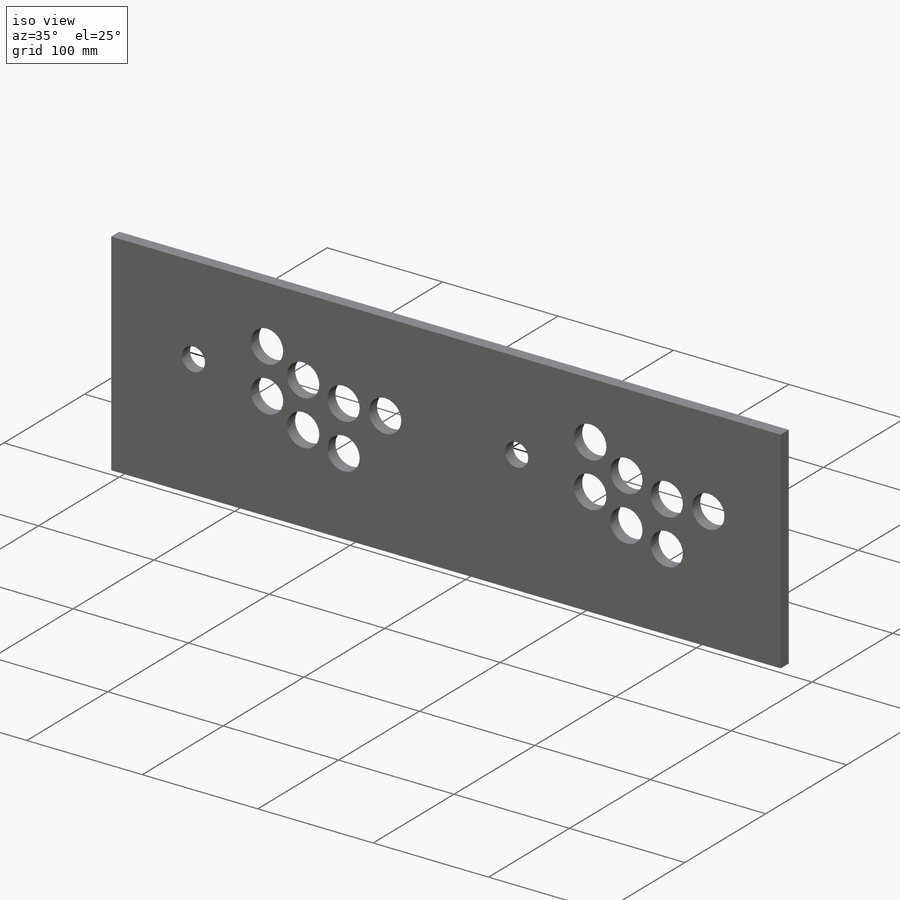
[diagram: iso view]
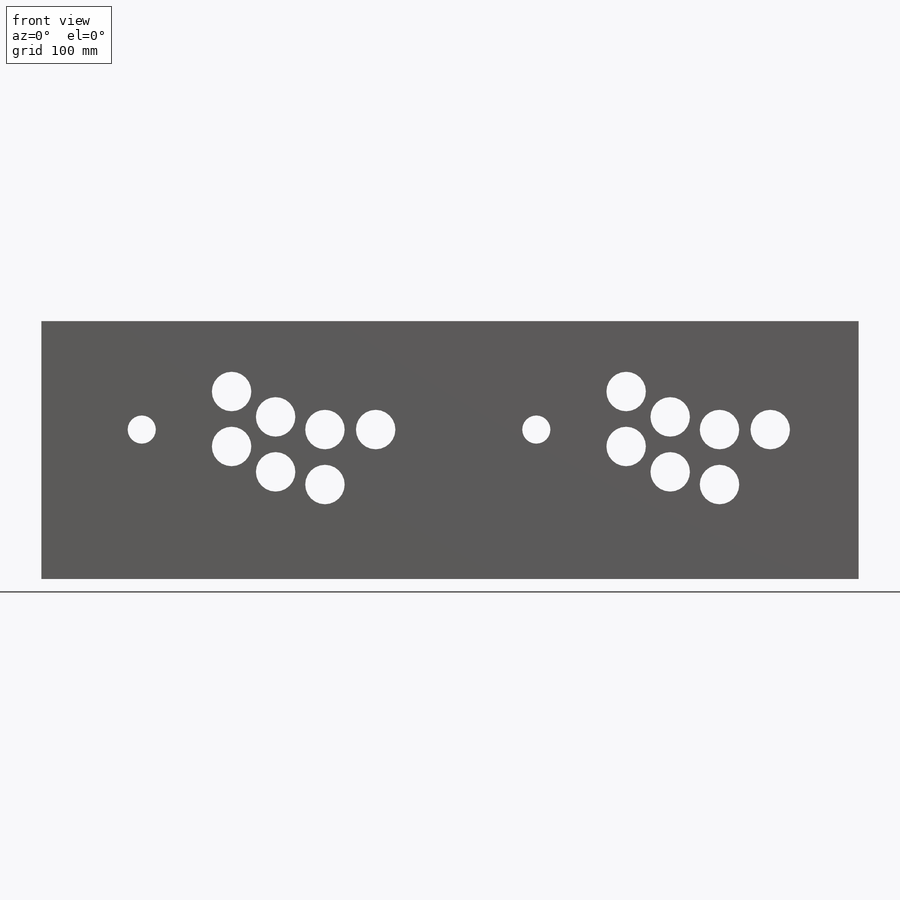
[diagram: front view]
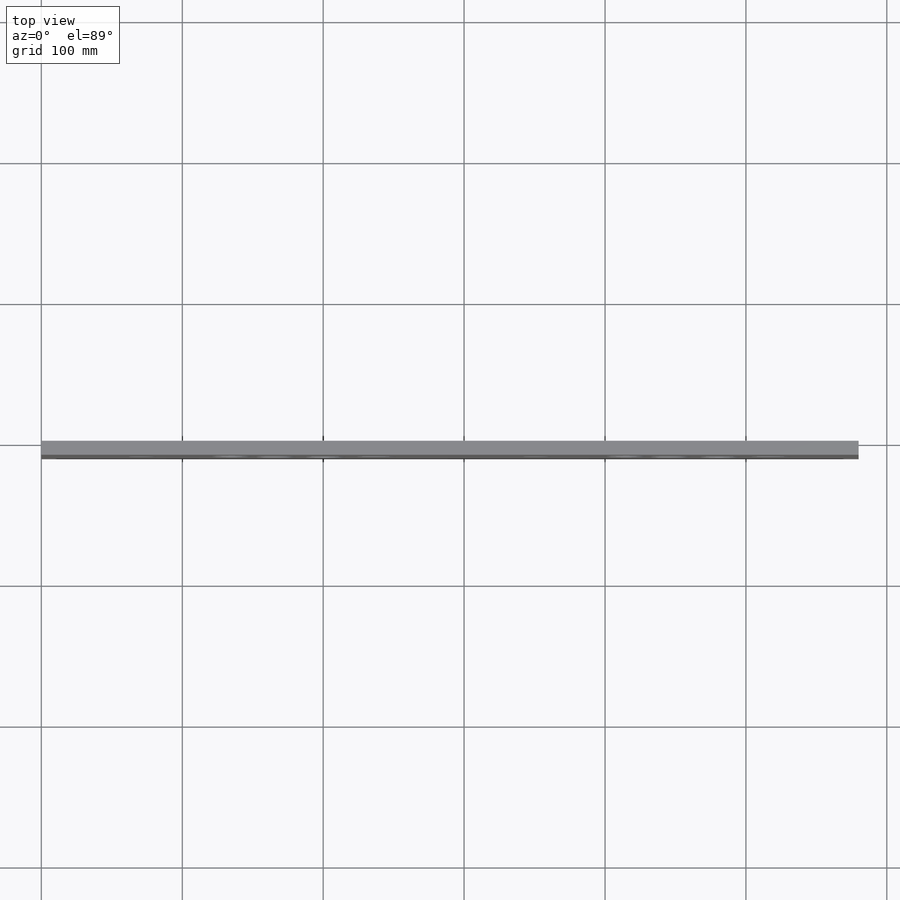
[diagram: top view]
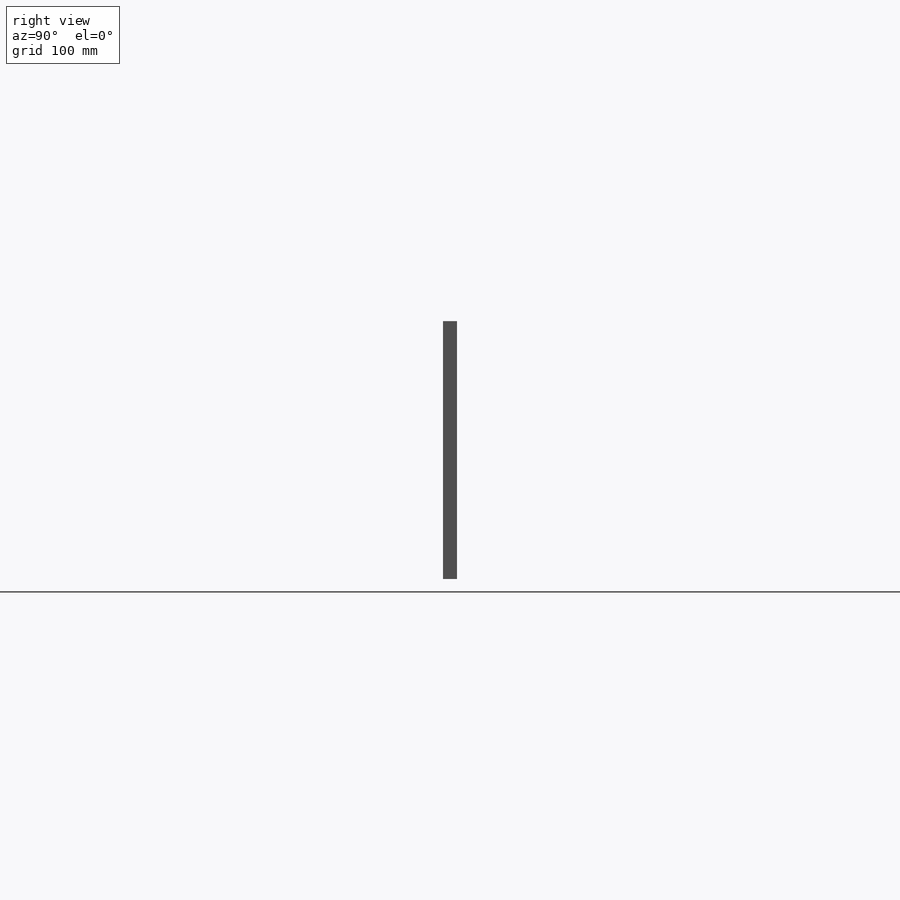
[diagram: right view]
SOLIDWORKS PART (.sldprt)
format: sldprt  version: not decoded by parser v0  size: 205,312 bytes
history: native  units: mm
features: plane x3, sketch x2, material x1, extrude x1, cut_extrude x1, pattern_linear x1, fillet x1 (+8 scaffold rows collapsed)
feature tree (18):
  scaffold x8  (default folders/planes/origin — collapsed)
  material  "Matériau <non spécifié>"
  plane  "Plan de face"
  plane  "Plan de dessus"
  plane  "Plan de droite"
  sketch  "Esquisse1"  dims[D1=183.0mm D2=580.0mm]
  extrude  "Boss.-Extru.1"  Depth=10mm
  sketch  "Esquisse3"  dims[c1.D12=28.0mm c1.D13=20.0mm c1.D2=28.0mm c1.D1=197.25mm c2.D2=66.0mm c2.D3=9.0mm c2.D4=18.0mm c2.D5=12.0mm c2.D6=9.0mm c2.D7=36.0mm c2.D8=35.0mm c2.D9=31.25mm c2.D10=59.0mm c2.D11=36.0mm c2.D14=50.0mm c2.D15=50.0mm c3.D2=81.25mm]
  cut_extrude  "Enlèv. mat.-Extru.1"  Depth=10mm
  pattern_linear  "Répétition linéaire1"  Count1=2 Count2=1 Spacing1=280mm Spacing2=10mm
  fillet  "Congé1"  Radius=4mm
decode coverage: 6 of 6 modeling features carry decoded parameters
note: suppression state not decoded; provenance and decode notes live in map.json
